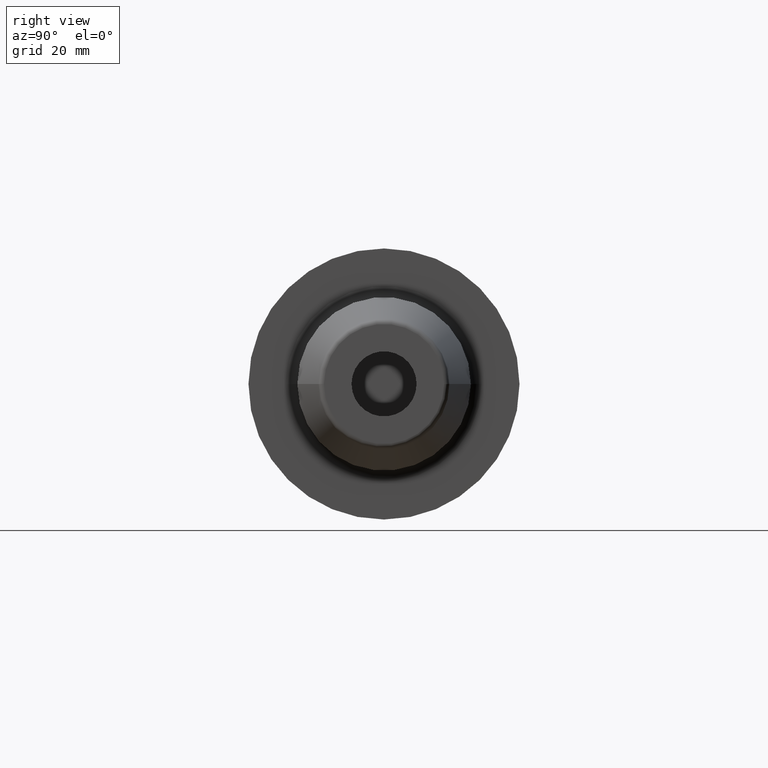
[diagram: clean part render]
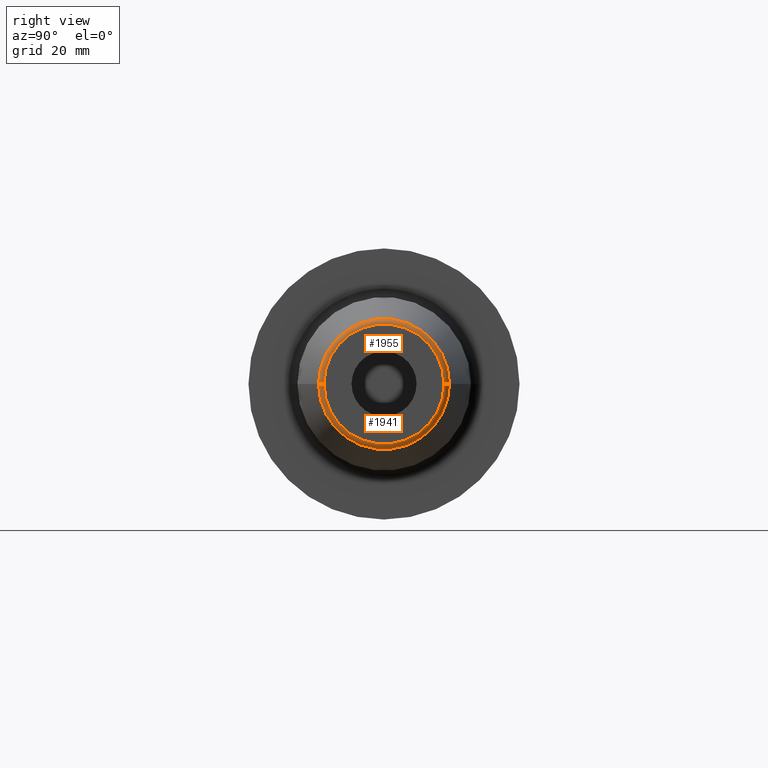
[diagram: same view with one multi-face feature highlighted, each face labeled with its STEP entity id]
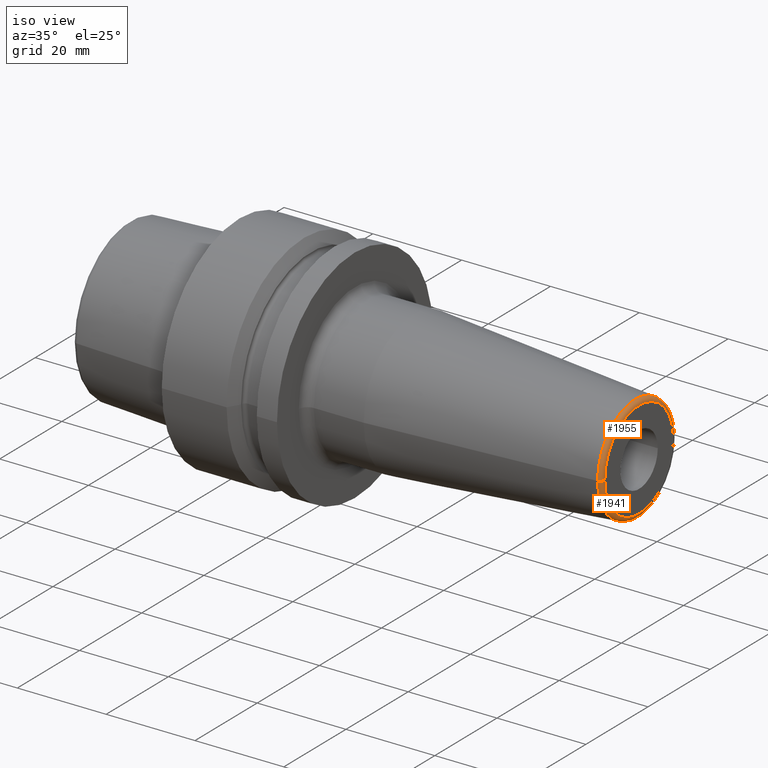
[diagram: same view with one multi-face feature highlighted, each face labeled with its STEP entity id]
A machine part, right view. The highlighted faces form ONE feature: a constant-radius fillet chain: 2 tangent blend faces with common blend radius 1 mm. The faces share edges in the B-rep.
A second angle (iso view) of the same feature is appended — it is thin or edge-on in the first view.
Their STEP definitions:
[1] entity #1955 (Torus):
#683=CARTESIAN_POINT('',(8.9E1,1.107560950834E1,1.269617050381E-11));
#684=DIRECTION('',(0.E0,1.146317415990E-12,-1.E0));
#685=DIRECTION('',(7.845909572791E-2,9.969173337331E-1,1.142783701960E-12));
#686=AXIS2_PLACEMENT_3D('',#683,#684,#685);
#688=CARTESIAN_POINT('',(8.9E1,-1.107560950834E1,-1.269537946991E-11));
#689=DIRECTION('',(0.E0,-1.146246292327E-12,1.E0));
#690=DIRECTION('',(7.845909572791E-2,-9.969173337331E-1,-1.142712797548E-12));
#691=AXIS2_PLACEMENT_3D('',#688,#689,#690);
#693=CARTESIAN_POINT('',(8.907845909573E1,0.E0,0.E0));
#694=DIRECTION('',(-1.E0,0.E0,0.E0));
#695=DIRECTION('',(0.E0,-1.E0,0.E0));
#696=AXIS2_PLACEMENT_3D('',#693,#694,#695);
#713=CARTESIAN_POINT('',(9.E1,0.E0,0.E0));
#714=DIRECTION('',(-1.E0,0.E0,0.E0));
#715=DIRECTION('',(0.E0,-1.E0,0.E0));
#716=AXIS2_PLACEMENT_3D('',#713,#714,#715);
#900=CARTESIAN_POINT('',(8.907845909573E1,1.207252684207E1,0.E0));
#901=CARTESIAN_POINT('',(8.907845909573E1,-1.207252684207E1,0.E0));
#902=VERTEX_POINT('',#900);
#903=VERTEX_POINT('',#901);
#904=CARTESIAN_POINT('',(9.E1,1.107560950834E1,0.E0));
#905=CARTESIAN_POINT('',(9.E1,-1.107560950834E1,0.E0));
#906=VERTEX_POINT('',#904);
#907=VERTEX_POINT('',#905);
#1942=CARTESIAN_POINT('',(8.9E1,0.E0,0.E0));
#1943=DIRECTION('',(1.E0,0.E0,0.E0));
#1944=DIRECTION('',(0.E0,-9.999860585694E-1,-5.280404032496E-3));
#1945=AXIS2_PLACEMENT_3D('',#1942,#1943,#1944);
#1946=TOROIDAL_SURFACE('',#1945,1.107560950834E1,1.E0);
#1948=ORIENTED_EDGE('',*,*,#1947,.T.);
#1949=ORIENTED_EDGE('',*,*,#1937,.T.);
#1951=ORIENTED_EDGE('',*,*,#1950,.F.);
#1952=ORIENTED_EDGE('',*,*,#1933,.F.);
#1953=EDGE_LOOP('',(#1948,#1949,#1951,#1952));
#1954=FACE_OUTER_BOUND('',#1953,.F.);
#1955=ADVANCED_FACE('',(#1954),#1946,.T.);
#687=CIRCLE('',#686,1.E0);
#692=CIRCLE('',#691,1.E0);
#697=CIRCLE('',#696,1.207252684207E1);
#717=CIRCLE('',#716,1.107560950834E1);
#1933=EDGE_CURVE('',#903,#907,#692,.T.);
#1937=EDGE_CURVE('',#902,#906,#687,.T.);
#1947=EDGE_CURVE('',#903,#902,#697,.T.);
#1950=EDGE_CURVE('',#907,#906,#717,.T.);
[2] entity #1941 (Torus):
#670=CARTESIAN_POINT('',(8.907845909573E1,0.E0,0.E0));
#671=DIRECTION('',(-1.E0,0.E0,0.E0));
#672=DIRECTION('',(0.E0,1.E0,0.E0));
#673=AXIS2_PLACEMENT_3D('',#670,#671,#672);
#683=CARTESIAN_POINT('',(8.9E1,1.107560950834E1,1.269617050381E-11));
#684=DIRECTION('',(0.E0,1.146317415990E-12,-1.E0));
#685=DIRECTION('',(7.845909572791E-2,9.969173337331E-1,1.142783701960E-12));
#686=AXIS2_PLACEMENT_3D('',#683,#684,#685);
#688=CARTESIAN_POINT('',(8.9E1,-1.107560950834E1,-1.269537946991E-11));
#689=DIRECTION('',(0.E0,-1.146246292327E-12,1.E0));
#690=DIRECTION('',(7.845909572791E-2,-9.969173337331E-1,-1.142712797548E-12));
#691=AXIS2_PLACEMENT_3D('',#688,#689,#690);
#708=CARTESIAN_POINT('',(9.E1,0.E0,0.E0));
#709=DIRECTION('',(-1.E0,0.E0,0.E0));
#710=DIRECTION('',(0.E0,1.E0,0.E0));
#711=AXIS2_PLACEMENT_3D('',#708,#709,#710);
#900=CARTESIAN_POINT('',(8.907845909573E1,1.207252684207E1,0.E0));
#901=CARTESIAN_POINT('',(8.907845909573E1,-1.207252684207E1,0.E0));
#902=VERTEX_POINT('',#900);
#903=VERTEX_POINT('',#901);
#904=CARTESIAN_POINT('',(9.E1,1.107560950834E1,0.E0));
#905=CARTESIAN_POINT('',(9.E1,-1.107560950834E1,0.E0));
#906=VERTEX_POINT('',#904);
#907=VERTEX_POINT('',#905);
#1927=CARTESIAN_POINT('',(8.9E1,0.E0,0.E0));
#1928=DIRECTION('',(1.E0,0.E0,0.E0));
#1929=DIRECTION('',(0.E0,9.999860585694E-1,5.280404032496E-3));
#1930=AXIS2_PLACEMENT_3D('',#1927,#1928,#1929);
#1931=TOROIDAL_SURFACE('',#1930,1.107560950834E1,1.E0);
#1932=ORIENTED_EDGE('',*,*,#1917,.T.);
#1934=ORIENTED_EDGE('',*,*,#1933,.T.);
#1936=ORIENTED_EDGE('',*,*,#1935,.F.);
#1938=ORIENTED_EDGE('',*,*,#1937,.F.);
#1939=EDGE_LOOP('',(#1932,#1934,#1936,#1938));
#1940=FACE_OUTER_BOUND('',#1939,.F.);
#1941=ADVANCED_FACE('',(#1940),#1931,.T.);
#674=CIRCLE('',#673,1.207252684207E1);
#687=CIRCLE('',#686,1.E0);
#692=CIRCLE('',#691,1.E0);
#712=CIRCLE('',#711,1.107560950834E1);
#1917=EDGE_CURVE('',#902,#903,#674,.T.);
#1933=EDGE_CURVE('',#903,#907,#692,.T.);
#1935=EDGE_CURVE('',#906,#907,#712,.T.);
#1937=EDGE_CURVE('',#902,#906,#687,.T.);